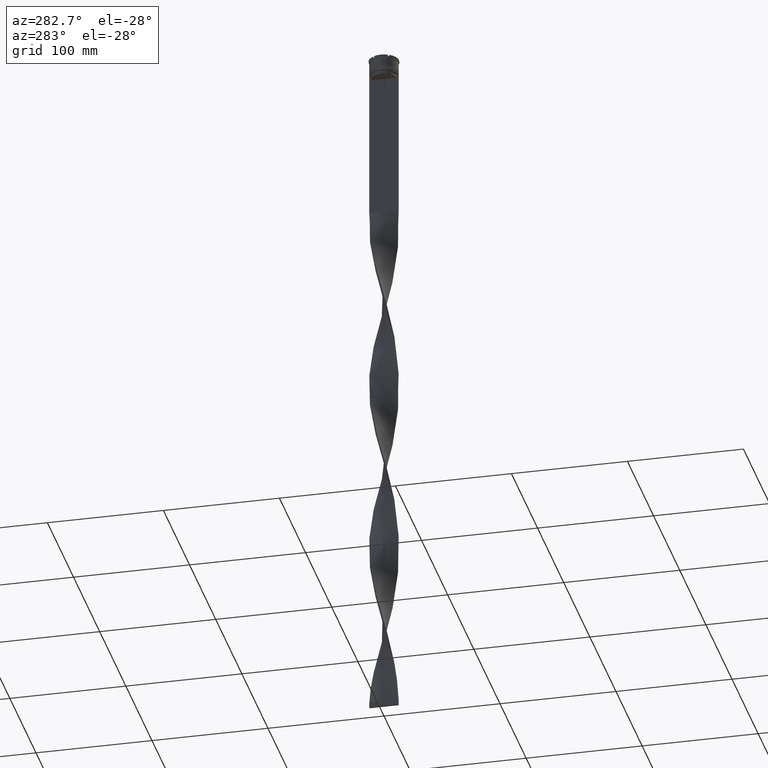
[diagram: clean part render]
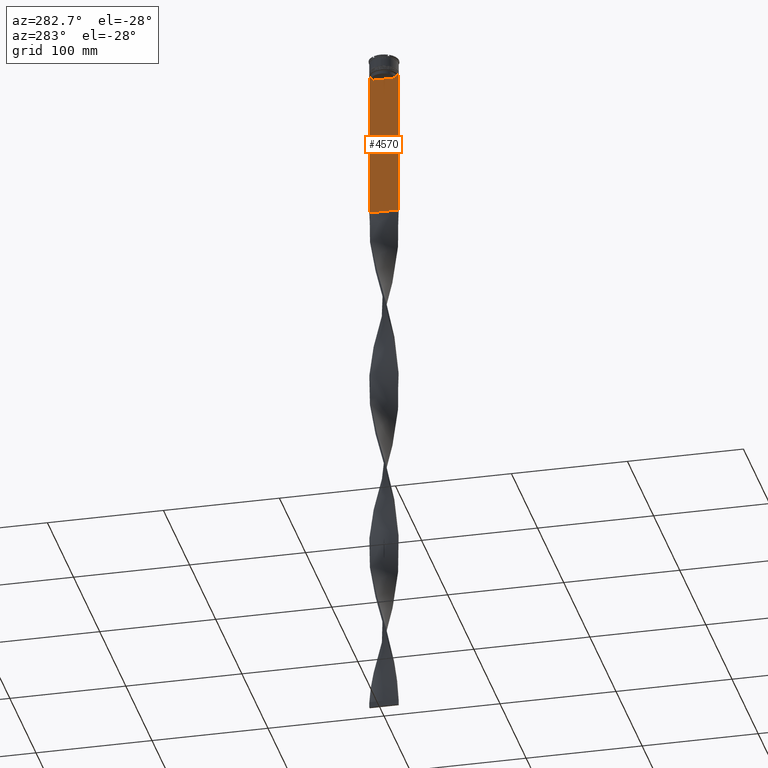
[diagram: same view with one face highlighted and labeled with its STEP entity id]
A machine part, auxiliary view. The second image highlights one B-rep face of the part: STEP entity #4570.
In plain terms, the highlighted planar face has unit normal (-1, 0, 0).
Its self-contained STEP definition (entity closure, byte-faithful):
#47 = DIRECTION ( 'NONE',  ( 0.000000000000000000, 0.000000000000000000, -1.000000000000000000 ) ) ;
#78 = LINE ( 'NONE', #3076, #2654 ) ;
#103 = CARTESIAN_POINT ( 'NONE',  ( -0.7499999999999997780, -10.87416663473574374, 0.000000000000000000 ) ) ;
#166 = LINE ( 'NONE', #3178, #459 ) ;
#210 = DIRECTION ( 'NONE',  ( 0.000000000000000000, 0.000000000000000000, -1.000000000000000000 ) ) ;
#225 = EDGE_CURVE ( 'NONE', #584, #2572, #2866, .T. ) ;
#237 = CARTESIAN_POINT ( 'NONE',  ( -0.7499999999999997780, -12.50000000000000000, 11.04495957273638673 ) ) ;
#251 = LINE ( 'NONE', #3243, #1549 ) ;
#268 = ORIENTED_EDGE ( 'NONE', *, *, #4851, .T. ) ;
#299 = CARTESIAN_POINT ( 'NONE',  ( -0.7499999999999997780, -12.50000000000000000, -143.0000000000000284 ) ) ;
#363 = EDGE_CURVE ( 'NONE', #4819, #3309, #975, .T. ) ;
#374 = VECTOR ( 'NONE', #2800, 1000.000000000000000 ) ;
#425 = CARTESIAN_POINT ( 'NONE',  ( -0.7499999999999997780, 10.87416663473574374, -14.50000000000000000 ) ) ;
#449 = CARTESIAN_POINT ( 'NONE',  ( -0.7499999999999997780, -11.37530219378809093, -14.00000000000000178 ) ) ;
#459 = VECTOR ( 'NONE', #2065, 1000.000000000000000 ) ;
#484 = CARTESIAN_POINT ( 'NONE',  ( -0.7499999999999997780, -11.20826532207830439, -14.16667499063191471 ) ) ;
#584 = VERTEX_POINT ( 'NONE', #3161 ) ;
#609 = EDGE_CURVE ( 'NONE', #2718, #4253, #681, .T. ) ;
#681 = B_SPLINE_CURVE_WITH_KNOTS ( 'NONE', 3,
 ( #1243, #4661, #484, #4638 ),
 .UNSPECIFIED., .F., .F.,
 ( 4, 4 ),
 ( 0.05009718908159448147, 0.05081156920313960323 ),
 .UNSPECIFIED. ) ;
#755 = LINE ( 'NONE', #1423, #1621 ) ;
#794 = LINE ( 'NONE', #2985, #3523 ) ;
#944 = EDGE_CURVE ( 'NONE', #1322, #2219, #3663, .T. ) ;
#975 = B_SPLINE_CURVE_WITH_KNOTS ( 'NONE', 3,
 ( #3265, #4472, #1444, #1562 ),
 .UNSPECIFIED., .F., .F.,
 ( 4, 4 ),
 ( 0.01936090553552769281, 0.02006881572333104116 ),
 .UNSPECIFIED. ) ;
#1004 = DIRECTION ( 'NONE',  ( 0.000000000000000000, -1.000000000000000000, 0.000000000000000000 ) ) ;
#1053 = VERTEX_POINT ( 'NONE', #2625 ) ;
#1091 = EDGE_CURVE ( 'NONE', #3309, #584, #755, .T. ) ;
#1243 = CARTESIAN_POINT ( 'NONE',  ( -0.7499999999999997780, -10.87416663473574374, -14.50000000000000000 ) ) ;
#1256 = LINE ( 'NONE', #103, #4695 ) ;
#1274 = DIRECTION ( 'NONE',  ( 0.000000000000000000, -1.000000000000000000, 0.000000000000000000 ) ) ;
#1322 = VERTEX_POINT ( 'NONE', #3510 ) ;
#1411 = ORIENTED_EDGE ( 'NONE', *, *, #3967, .F. ) ;
#1423 = CARTESIAN_POINT ( 'NONE',  ( -0.7499999999999997780, 10.87416663473574374, 0.000000000000000000 ) ) ;
#1444 = CARTESIAN_POINT ( 'NONE',  ( -0.7499999999999997780, 11.04122051153452055, -14.33334204648729582 ) ) ;
#1508 = DIRECTION ( 'NONE',  ( 0.000000000000000000, -1.000000000000000000, 0.000000000000000000 ) ) ;
#1532 = EDGE_CURVE ( 'NONE', #1846, #1053, #166, .T. ) ;
#1549 = VECTOR ( 'NONE', #1004, 1000.000000000000000 ) ;
#1562 = CARTESIAN_POINT ( 'NONE',  ( -0.7499999999999997780, 10.87416663473574374, -14.50000000000000000 ) ) ;
#1621 = VECTOR ( 'NONE', #3758, 1000.000000000000000 ) ;
#1636 = AXIS2_PLACEMENT_3D ( 'NONE', #237, #2853, #2536 ) ;
#1658 = VECTOR ( 'NONE', #1274, 1000.000000000000000 ) ;
#1837 = CARTESIAN_POINT ( 'NONE',  ( -0.7499999999999997780, -12.37729776647553059, -14.00000000000000178 ) ) ;
#1846 = VERTEX_POINT ( 'NONE', #1837 ) ;
#2008 = DIRECTION ( 'NONE',  ( 0.000000000000000000, -1.000000000000000000, 0.000000000000000000 ) ) ;
#2065 = DIRECTION ( 'NONE',  ( 0.000000000000000000, -1.000000000000000000, 0.000000000000000000 ) ) ;
#2219 = VERTEX_POINT ( 'NONE', #3617 ) ;
#2245 = ORIENTED_EDGE ( 'NONE', *, *, #3760, .F. ) ;
#2282 = LINE ( 'NONE', #3419, #2341 ) ;
#2341 = VECTOR ( 'NONE', #47, 1000.000000000000000 ) ;
#2355 = DIRECTION ( 'NONE',  ( -0.000000000000000000, -0.000000000000000000, 1.000000000000000000 ) ) ;
#2444 = EDGE_CURVE ( 'NONE', #1053, #1322, #2832, .T. ) ;
#2512 = PLANE ( 'NONE',  #1636 ) ;
#2536 = DIRECTION ( 'NONE',  ( 0.000000000000000000, 0.000000000000000000, 1.000000000000000000 ) ) ;
#2548 = ORIENTED_EDGE ( 'NONE', *, *, #3301, .F. ) ;
#2572 = VERTEX_POINT ( 'NONE', #2698 ) ;
#2625 = CARTESIAN_POINT ( 'NONE',  ( -0.7499999999999997780, -12.50000000000000000, -14.00000000000000178 ) ) ;
#2654 = VECTOR ( 'NONE', #2008, 1000.000000000000000 ) ;
#2698 = CARTESIAN_POINT ( 'NONE',  ( -0.7499999999999997780, -10.87416663473574019, -17.00000000000000000 ) ) ;
#2706 = CARTESIAN_POINT ( 'NONE',  ( -0.7499999999999997780, 12.37729776647553059, -14.00000000000000178 ) ) ;
#2718 = VERTEX_POINT ( 'NONE', #3166 ) ;
#2800 = DIRECTION ( 'NONE',  ( 0.000000000000000000, 1.000000000000000000, 0.000000000000000000 ) ) ;
#2832 = LINE ( 'NONE', #3912, #4367 ) ;
#2839 = VERTEX_POINT ( 'NONE', #3986 ) ;
#2853 = DIRECTION ( 'NONE',  ( -1.000000000000000000, 0.000000000000000000, 0.000000000000000000 ) ) ;
#2866 = LINE ( 'NONE', #3144, #1658 ) ;
#2906 = FACE_OUTER_BOUND ( 'NONE', #4066, .T. ) ;
#2985 = CARTESIAN_POINT ( 'NONE',  ( -0.7499999999999997780, -12.50000000000000000, -14.00000000000000178 ) ) ;
#3076 = CARTESIAN_POINT ( 'NONE',  ( -0.7499999999999997780, -12.50000000000000000, -14.00000000000000178 ) ) ;
#3144 = CARTESIAN_POINT ( 'NONE',  ( -0.7499999999999997780, 10.90000000000000213, -17.00000000000000000 ) ) ;
#3161 = CARTESIAN_POINT ( 'NONE',  ( -0.7499999999999997780, 10.87416663473574019, -17.00000000000000000 ) ) ;
#3166 = CARTESIAN_POINT ( 'NONE',  ( -0.7499999999999997780, -10.87416663473574374, -14.50000000000000000 ) ) ;
#3178 = CARTESIAN_POINT ( 'NONE',  ( -0.7499999999999997780, -12.50000000000000000, -14.00000000000000178 ) ) ;
#3243 = CARTESIAN_POINT ( 'NONE',  ( -0.7499999999999997780, -12.50000000000000000, -14.00000000000000178 ) ) ;
#3265 = CARTESIAN_POINT ( 'NONE',  ( -0.7499999999999997780, 11.37530219378809093, -14.00000000000000178 ) ) ;
#3293 = VERTEX_POINT ( 'NONE', #2706 ) ;
#3301 = EDGE_CURVE ( 'NONE', #4253, #1846, #78, .T. ) ;
#3309 = VERTEX_POINT ( 'NONE', #425 ) ;
#3380 = ORIENTED_EDGE ( 'NONE', *, *, #944, .F. ) ;
#3382 = EDGE_CURVE ( 'NONE', #2572, #2718, #1256, .T. ) ;
#3419 = CARTESIAN_POINT ( 'NONE',  ( -0.7499999999999997780, 12.50000000000000000, 11.04495957273638673 ) ) ;
#3486 = ORIENTED_EDGE ( 'NONE', *, *, #3382, .F. ) ;
#3510 = CARTESIAN_POINT ( 'NONE',  ( -0.7499999999999997780, -12.50000000000000000, -143.0000000000000284 ) ) ;
#3523 = VECTOR ( 'NONE', #1508, 1000.000000000000000 ) ;
#3617 = CARTESIAN_POINT ( 'NONE',  ( -0.7499999999999997780, 12.50000000000000000, -143.0000000000000284 ) ) ;
#3663 = LINE ( 'NONE', #299, #374 ) ;
#3758 = DIRECTION ( 'NONE',  ( 0.000000000000000000, 0.000000000000000000, -1.000000000000000000 ) ) ;
#3760 = EDGE_CURVE ( 'NONE', #2839, #3293, #251, .T. ) ;
#3867 = ORIENTED_EDGE ( 'NONE', *, *, #609, .F. ) ;
#3912 = CARTESIAN_POINT ( 'NONE',  ( -0.7499999999999997780, -12.50000000000000000, 11.04495957273638673 ) ) ;
#3967 = EDGE_CURVE ( 'NONE', #3293, #4819, #794, .T. ) ;
#3986 = CARTESIAN_POINT ( 'NONE',  ( -0.7499999999999997780, 12.50000000000000000, -14.00000000000000178 ) ) ;
#3997 = ORIENTED_EDGE ( 'NONE', *, *, #1532, .F. ) ;
#4066 = EDGE_LOOP ( 'NONE', ( #4362, #1411, #2245, #268, #3380, #4494, #3997, #2548, #3867, #3486, #4781, #4752 ) ) ;
#4253 = VERTEX_POINT ( 'NONE', #449 ) ;
#4362 = ORIENTED_EDGE ( 'NONE', *, *, #363, .F. ) ;
#4367 = VECTOR ( 'NONE', #210, 1000.000000000000000 ) ;
#4472 = CARTESIAN_POINT ( 'NONE',  ( -0.7499999999999997780, 11.20826531587977648, -14.16667499681701514 ) ) ;
#4494 = ORIENTED_EDGE ( 'NONE', *, *, #2444, .F. ) ;
#4570 = ADVANCED_FACE ( 'NONE', ( #2906 ), #2512, .T. ) ;
#4638 = CARTESIAN_POINT ( 'NONE',  ( -0.7499999999999997780, -11.37530219378809093, -14.00000000000000178 ) ) ;
#4661 = CARTESIAN_POINT ( 'NONE',  ( -0.7499999999999997780, -11.04122051801870619, -14.33334204001847745 ) ) ;
#4695 = VECTOR ( 'NONE', #2355, 1000.000000000000000 ) ;
#4752 = ORIENTED_EDGE ( 'NONE', *, *, #1091, .F. ) ;
#4781 = ORIENTED_EDGE ( 'NONE', *, *, #225, .F. ) ;
#4819 = VERTEX_POINT ( 'NONE', #4847 ) ;
#4847 = CARTESIAN_POINT ( 'NONE',  ( -0.7499999999999997780, 11.37530219378809093, -14.00000000000000178 ) ) ;
#4851 = EDGE_CURVE ( 'NONE', #2839, #2219, #2282, .T. ) ;